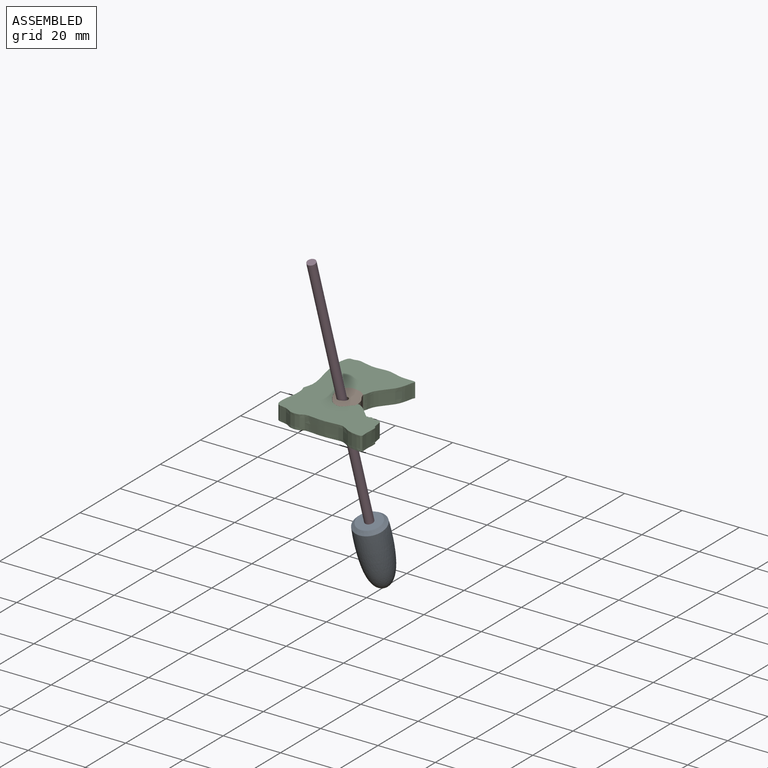
[diagram: assembled view]
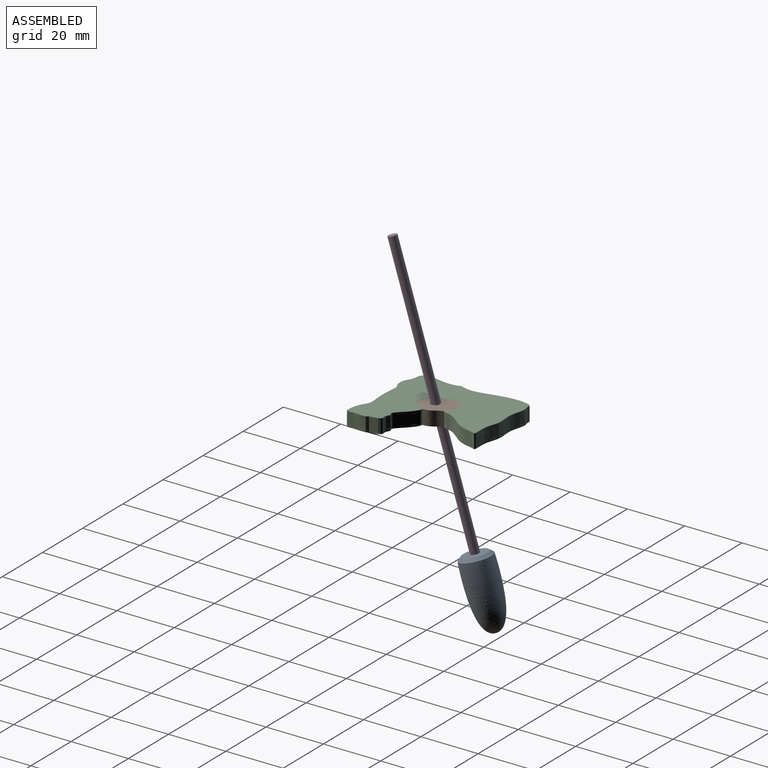
[diagram: assembled view, second angle]
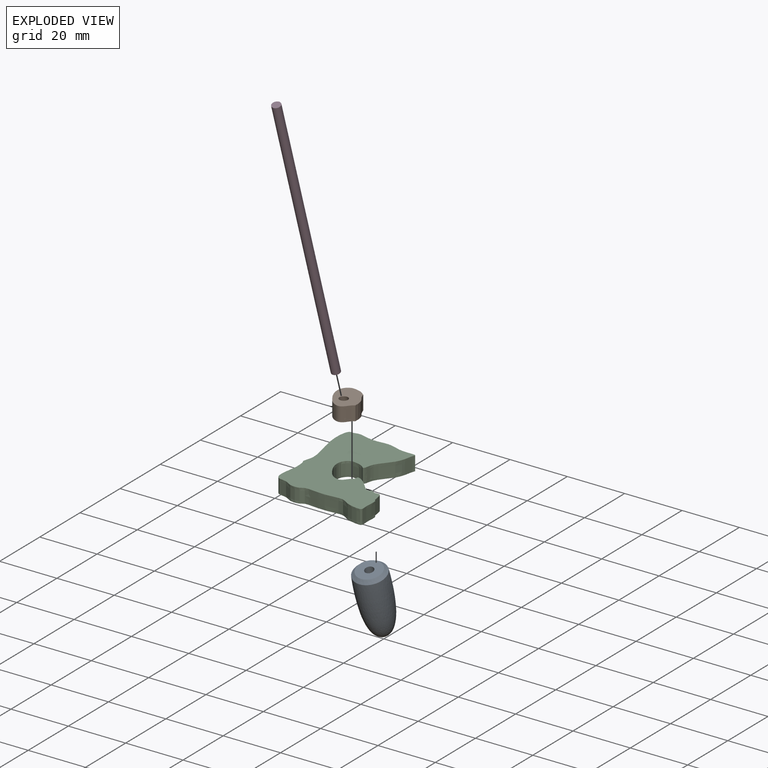
[diagram: exploded view]
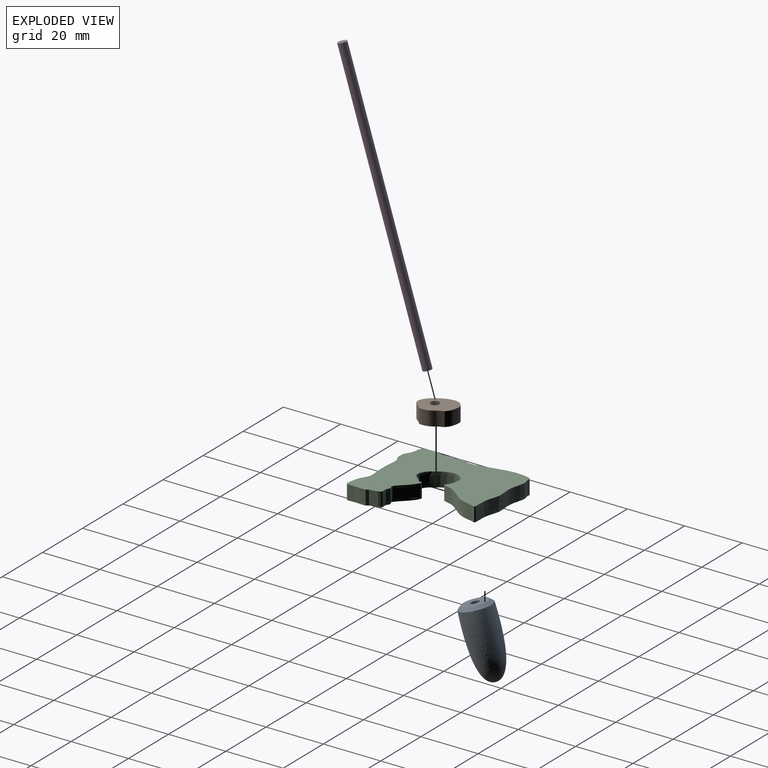
[diagram: exploded view, second angle]
ASSEMBLY  parts=4 mates=2
PART A: 5 faces, bbox 11.3x24.3x11.3 mm
  f0: revolved ~23.19x11.31mm, area 1469.7mm2, adj f2
  f1: plane 8.59x8.58mm, normal (0,-1,-0.02), area 50.8mm2, adj f2,f3
  f2: cone r=4.29mm half-angle=47.2deg, axis (0,1,0.02), area 49.5mm2, adj f0,f1
  f3: cylinder r=1.5mm len=3.06mm, axis (0,-1,-0.02), area 28.3mm2, adj f1,f4
  f4: plane 3x3mm, normal (0,-1,-0.02), area 7.1mm2, adj f3
PART B: 5 faces, bbox 10.8x19.3x12.8 mm
  f0: extruded ~6.2x5mm, area 33.7mm2, adj f1,f2,f3
  f1: extruded ~12.2x10.13mm, area 139.8mm2, adj f0,f2,f3
  f2: plane 12.83x10.77mm, normal (0,-1,0), area 81.3mm2, adj f0,f1,f4
  f3: plane 12.83x10.77mm, normal (0,1,0), area 81.3mm2, adj f0,f1,f4
  f4: bspline ~18.92x9.89mm, area 48.7mm2, adj f2,f3
PART C: 3 faces, bbox 34.6x5x41.8 mm
  f0: extruded ~41.24x33.94mm, area 873.5mm2, adj f1,f2
  f1: plane 41.84x34.59mm, normal (0,1,0), area 786.3mm2, adj f0
  f2: plane 41.84x34.59mm, normal (0,-1,0), area 786.3mm2, adj f0
PART D: 3 faces, bbox 3x100x3 mm
  f0: cylinder r=1.5mm len=100mm, axis (0,1,0), area 942.5mm2, adj f1,f2
  f1: plane 3x3mm, normal (0,-1,0), area 7.1mm2, adj f0
  f2: plane 3x3mm, normal (0,1,0), area 7.1mm2, adj f0
PLACE A rot(axis=(0,-0.81,0.58),180deg) t=(0.88,11.53,-43.96)mm
PLACE B rot(axis=(-1,0,0),90deg) t=(1.45,-1.1,-2.5)mm
PLACE C rot(axis=(-1,0,0),90deg) t=(-30.36,-23.09,0)mm
PLACE D rot(axis=(0,-0.81,0.59),180deg) t=(0.88,-2.43,0.92)mm
MATE fastened D.f0 <-> A.f2  axis (0,0.3,-0.95) through (0.88,12.43,-46.82)mm
MATE fastened B.f2 <-> C.f2  axis (0,0,1) through (1.75,-0.6,0)mm
